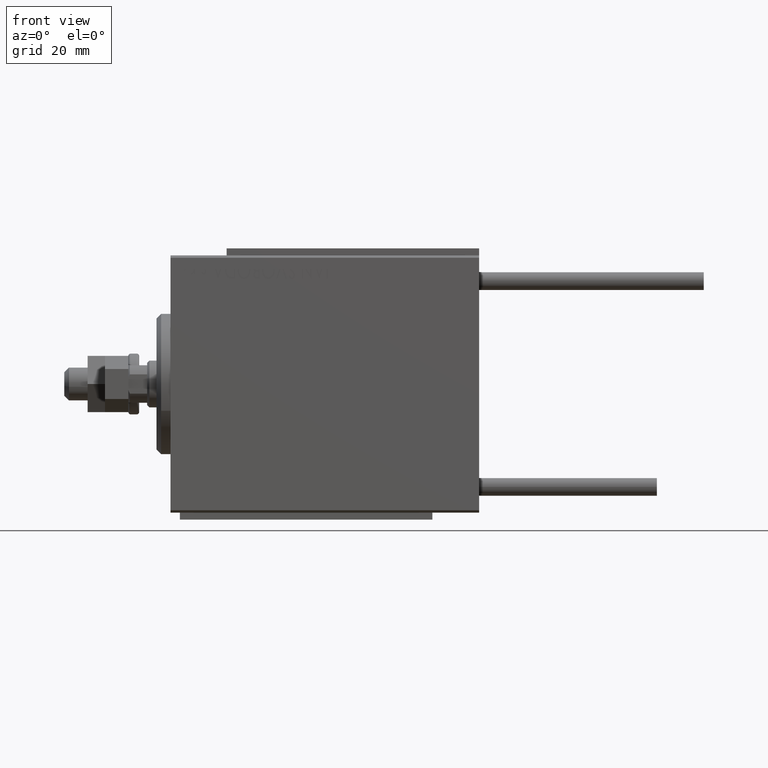
[diagram: clean part render]
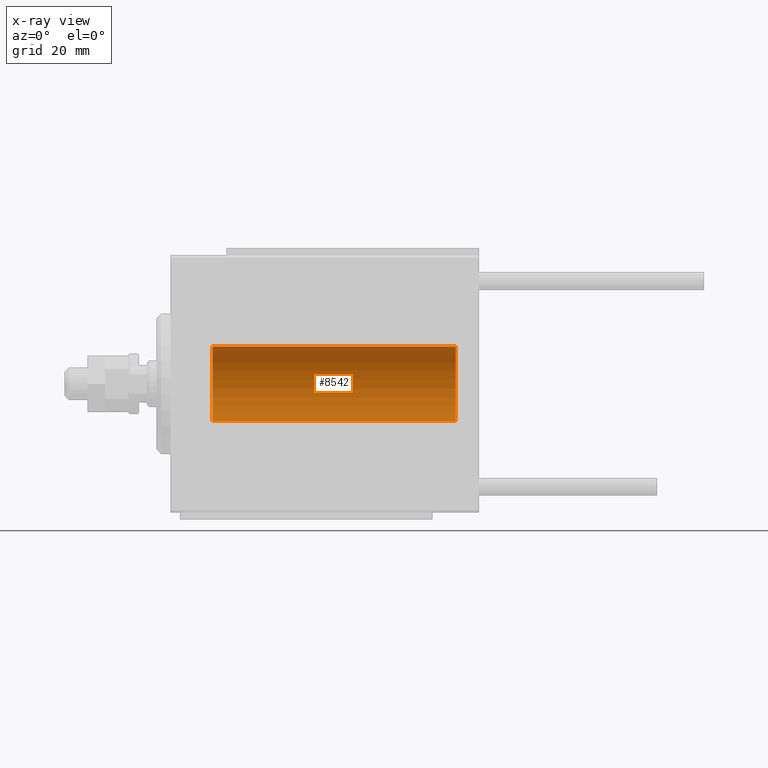
[diagram: x-ray — body ghosted, one internal face saturated and labeled with its STEP entity id]
A machine part, front view, then the same camera in x-ray: the body is ghosted and one INTERNAL B-rep face — a face not visible from any outside direction — is saturated and labeled: STEP entity #8542.
In plain terms, the highlighted cylindrical surface (partial cylindrical patch) has radius 8 mm, axis along (-1, -0, -0).
Its self-contained STEP definition (entity closure, byte-faithful):
#2136 = CARTESIAN_POINT ( 'NONE',  ( 9.000000000000001776, 0.000000000000000000, 0.000000000000000000 ) ) ;
#2410 = DIRECTION ( 'NONE',  ( -1.000000000000000000, -0.000000000000000000, -0.000000000000000000 ) ) ;
#3853 = DIRECTION ( 'NONE',  ( -1.000000000000000000, 0.000000000000000000, 0.000000000000000000 ) ) ;
#3907 = CIRCLE ( 'NONE', #20886, 7.999999999999998224 ) ;
#4912 = ORIENTED_EDGE ( 'NONE', *, *, #20144, .T. ) ;
#5686 = AXIS2_PLACEMENT_3D ( 'NONE', #38607, #3853, #23367 ) ;
#6261 = CARTESIAN_POINT ( 'NONE',  ( 61.00000000000000000, 9.797174393178821713E-16, -7.999999999999998224 ) ) ;
#8542 = ADVANCED_FACE ( 'NONE', ( #30863 ), #26545, .F. ) ;
#11314 = VECTOR ( 'NONE', #2410, 1000.000000000000000 ) ;
#13207 = CARTESIAN_POINT ( 'NONE',  ( 61.00000000000000000, 9.797174393178821713E-16, -7.999999999999998224 ) ) ;
#13837 = VERTEX_POINT ( 'NONE', #41997 ) ;
#16765 = VECTOR ( 'NONE', #43659, 1000.000000000000000 ) ;
#17114 = LINE ( 'NONE', #25452, #11314 ) ;
#17232 = EDGE_CURVE ( 'NONE', #49909, #38904, #23861, .T. ) ;
#20144 = EDGE_CURVE ( 'NONE', #40151, #38904, #3907, .T. ) ;
#20886 = AXIS2_PLACEMENT_3D ( 'NONE', #2136, #21655, #33327 ) ;
#21655 = DIRECTION ( 'NONE',  ( -1.000000000000000000, 0.000000000000000000, 0.000000000000000000 ) ) ;
#23367 = DIRECTION ( 'NONE',  ( 0.000000000000000000, 0.000000000000000000, 1.000000000000000000 ) ) ;
#23503 = ORIENTED_EDGE ( 'NONE', *, *, #25140, .F. ) ;
#23861 = LINE ( 'NONE', #13207, #16765 ) ;
#24884 = AXIS2_PLACEMENT_3D ( 'NONE', #33496, #46343, #27039 ) ;
#25140 = EDGE_CURVE ( 'NONE', #13837, #49909, #49475, .T. ) ;
#25356 = CARTESIAN_POINT ( 'NONE',  ( 9.000000000000001776, 0.000000000000000000, 7.999999999999998224 ) ) ;
#25452 = CARTESIAN_POINT ( 'NONE',  ( 61.00000000000000000, 0.000000000000000000, 7.999999999999998224 ) ) ;
#26545 = CYLINDRICAL_SURFACE ( 'NONE', #24884, 7.999999999999998224 ) ;
#27039 = DIRECTION ( 'NONE',  ( 0.000000000000000000, 0.000000000000000000, 1.000000000000000000 ) ) ;
#27583 = EDGE_CURVE ( 'NONE', #13837, #40151, #17114, .T. ) ;
#29663 = CARTESIAN_POINT ( 'NONE',  ( 9.000000000000001776, 9.797174393178821713E-16, -7.999999999999998224 ) ) ;
#30863 = FACE_OUTER_BOUND ( 'NONE', #48271, .T. ) ;
#31116 = ORIENTED_EDGE ( 'NONE', *, *, #17232, .F. ) ;
#33327 = DIRECTION ( 'NONE',  ( 0.000000000000000000, 0.000000000000000000, 1.000000000000000000 ) ) ;
#33496 = CARTESIAN_POINT ( 'NONE',  ( 61.00000000000000000, 0.000000000000000000, 0.000000000000000000 ) ) ;
#38607 = CARTESIAN_POINT ( 'NONE',  ( 61.00000000000000000, 0.000000000000000000, 0.000000000000000000 ) ) ;
#38904 = VERTEX_POINT ( 'NONE', #29663 ) ;
#39836 = ORIENTED_EDGE ( 'NONE', *, *, #27583, .T. ) ;
#40151 = VERTEX_POINT ( 'NONE', #25356 ) ;
#41997 = CARTESIAN_POINT ( 'NONE',  ( 61.00000000000000000, 0.000000000000000000, 7.999999999999998224 ) ) ;
#43659 = DIRECTION ( 'NONE',  ( -1.000000000000000000, -0.000000000000000000, -0.000000000000000000 ) ) ;
#46343 = DIRECTION ( 'NONE',  ( -1.000000000000000000, -0.000000000000000000, -0.000000000000000000 ) ) ;
#48271 = EDGE_LOOP ( 'NONE', ( #31116, #23503, #39836, #4912 ) ) ;
#49475 = CIRCLE ( 'NONE', #5686, 7.999999999999998224 ) ;
#49909 = VERTEX_POINT ( 'NONE', #6261 ) ;